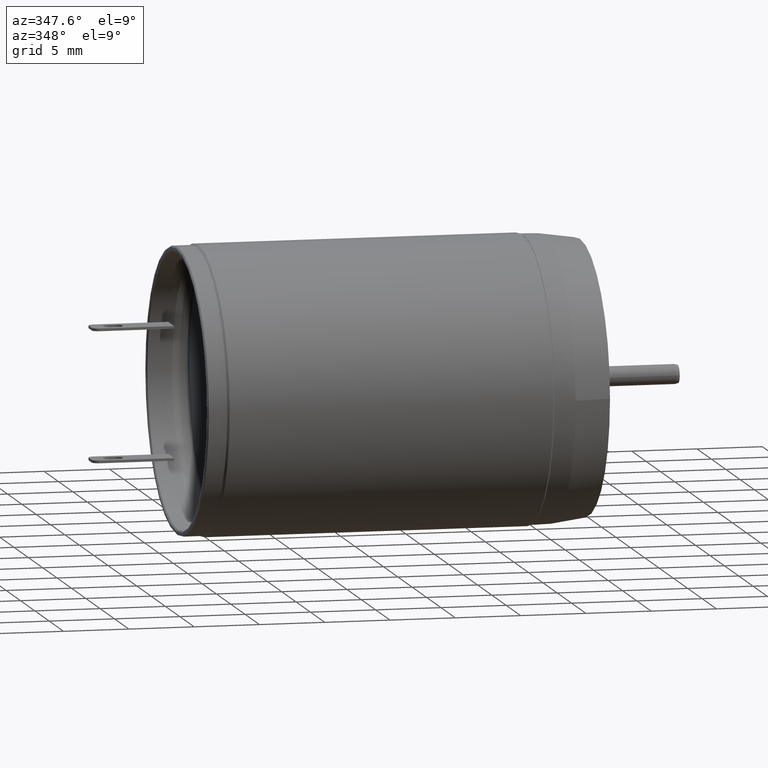
[diagram: clean part render]
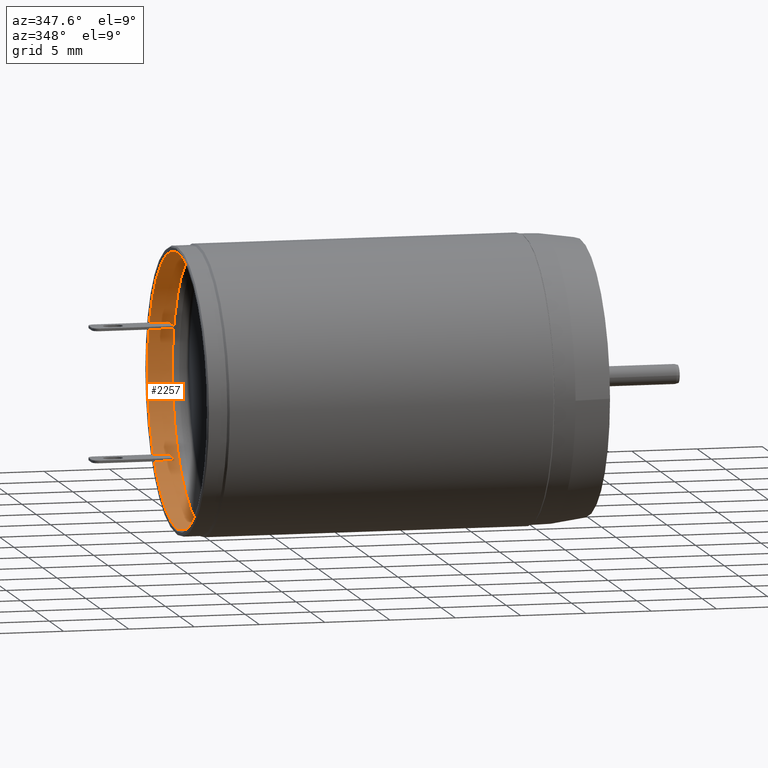
[diagram: same view with one face highlighted and labeled with its STEP entity id]
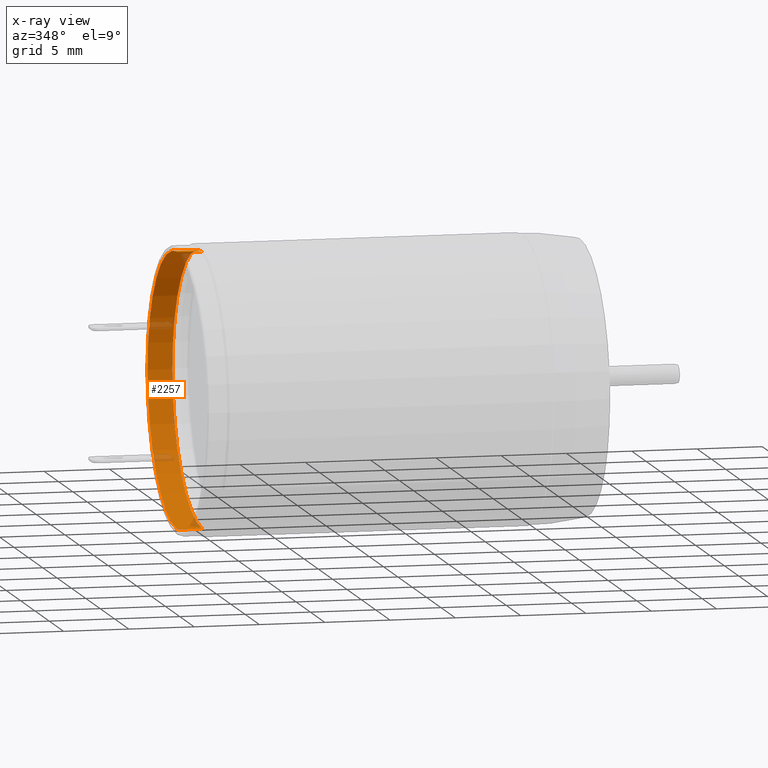
[diagram: x-ray of the same camera — body ghosted, the highlighted face saturated]
A machine part, auxiliary view. The second image highlights one B-rep face of the part: STEP entity #2257.
The next image is the same camera in x-ray: the body ghosted, the highlighted face saturated — about 6% of this face is hidden behind the body in this view.
In plain terms, the highlighted cylindrical surface (partial cylindrical patch) has radius 10.5 mm, axis along (-1, 0, 0).
Its self-contained STEP definition (entity closure, byte-faithful):
#427=CARTESIAN_POINT('',(7.696658513336E1,2.428669869102E0,-3.989812658115E0));
#428=DIRECTION('',(-1.E0,0.E0,0.E0));
#429=DIRECTION('',(0.E0,0.E0,1.E0));
#430=AXIS2_PLACEMENT_3D('',#427,#428,#429);
#450=DIRECTION('',(1.E0,-2.833027550408E-10,-1.539504044820E-7));
#451=VECTOR('',#450,1.899998318131E0);
#452=CARTESIAN_POINT('',(7.696658447523E1,2.428669869102E0,6.510187634389E0));
#453=LINE('',#452,#451);
#454=CARTESIAN_POINT('',(7.886658279336E1,2.428669869102E0,-3.989812658115E0));
#455=DIRECTION('',(-1.E0,0.E0,0.E0));
#456=DIRECTION('',(0.E0,0.E0,1.E0));
#457=AXIS2_PLACEMENT_3D('',#454,#455,#456);
#459=DIRECTION('',(-1.E0,-1.180344203842E-9,-7.697503926608E-8));
#460=VECTOR('',#459,1.899997806251E0);
#461=CARTESIAN_POINT('',(7.886658279336E1,2.428669867218E0,-1.448981265811E1));
#462=LINE('',#461,#460);
#1409=CARTESIAN_POINT('',(7.886658279336E1,2.428669867218E0,-1.448981265811E1));
#1410=VERTEX_POINT('',#1409);
#1411=CARTESIAN_POINT('',(7.886658279336E1,2.428669869102E0,6.510187341885E0));
#1412=VERTEX_POINT('',#1411);
#1413=CARTESIAN_POINT('',(7.696658447523E1,2.428669869102E0,6.510187634389E0));
#1414=VERTEX_POINT('',#1413);
#1415=CARTESIAN_POINT('',(7.696658498711E1,2.428669864975E0,-1.448981280437E1));
#1416=VERTEX_POINT('',#1415);
#2245=CARTESIAN_POINT('',(7.891778554562E1,2.428669869102E0,-3.989812658115E0));
#2246=DIRECTION('',(-1.E0,0.E0,0.E0));
#2247=DIRECTION('',(0.E0,0.E0,1.E0));
#2248=AXIS2_PLACEMENT_3D('',#2245,#2246,#2247);
#2249=CYLINDRICAL_SURFACE('',#2248,1.05E1);
#2250=ORIENTED_EDGE('',*,*,#2210,.F.);
#2251=ORIENTED_EDGE('',*,*,#2235,.T.);
#2253=ORIENTED_EDGE('',*,*,#2252,.T.);
#2254=ORIENTED_EDGE('',*,*,#2238,.T.);
#2255=EDGE_LOOP('',(#2250,#2251,#2253,#2254));
#2256=FACE_OUTER_BOUND('',#2255,.F.);
#2257=ADVANCED_FACE('',(#2256),#2249,.F.);
#431=CIRCLE('',#430,1.05E1);
#458=CIRCLE('',#457,1.05E1);
#2210=EDGE_CURVE('',#1414,#1416,#431,.T.);
#2235=EDGE_CURVE('',#1414,#1412,#453,.T.);
#2238=EDGE_CURVE('',#1410,#1416,#462,.T.);
#2252=EDGE_CURVE('',#1412,#1410,#458,.T.);